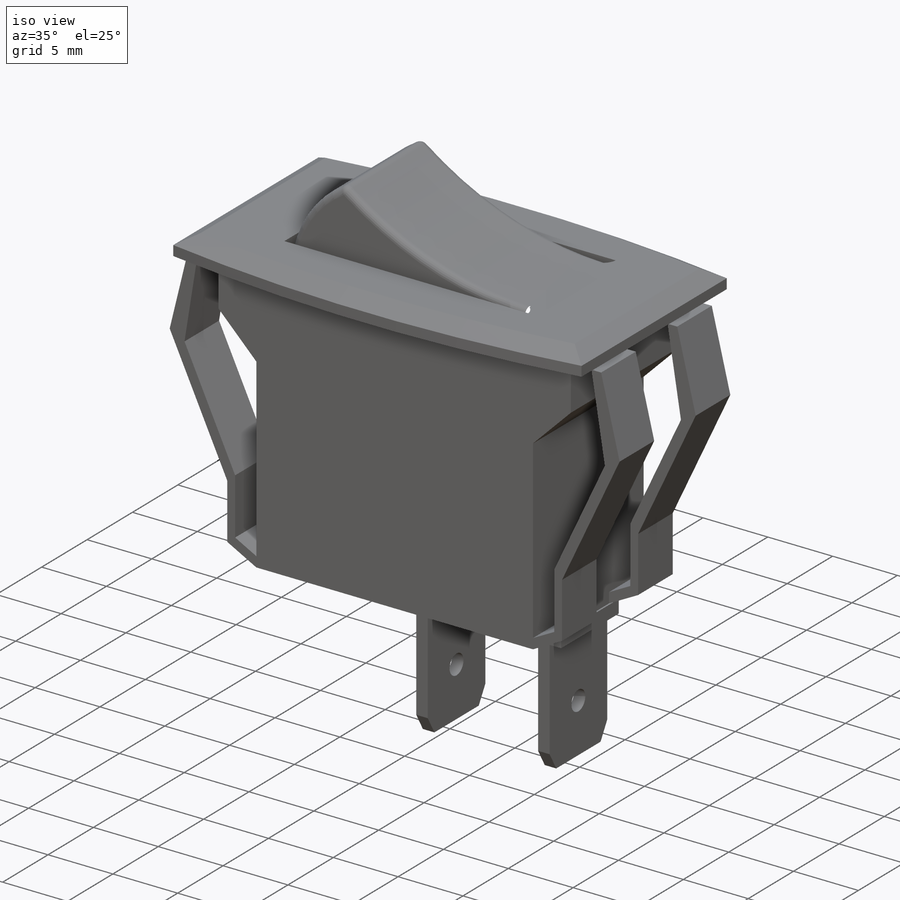
[diagram: iso view]
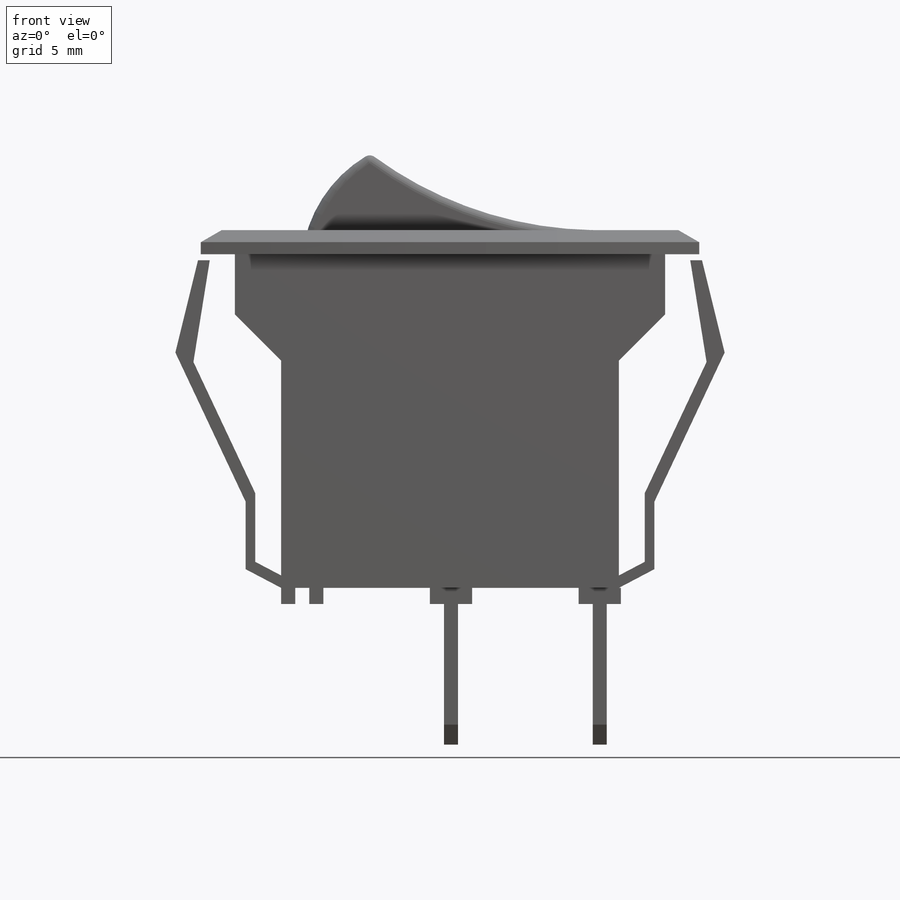
[diagram: front view]
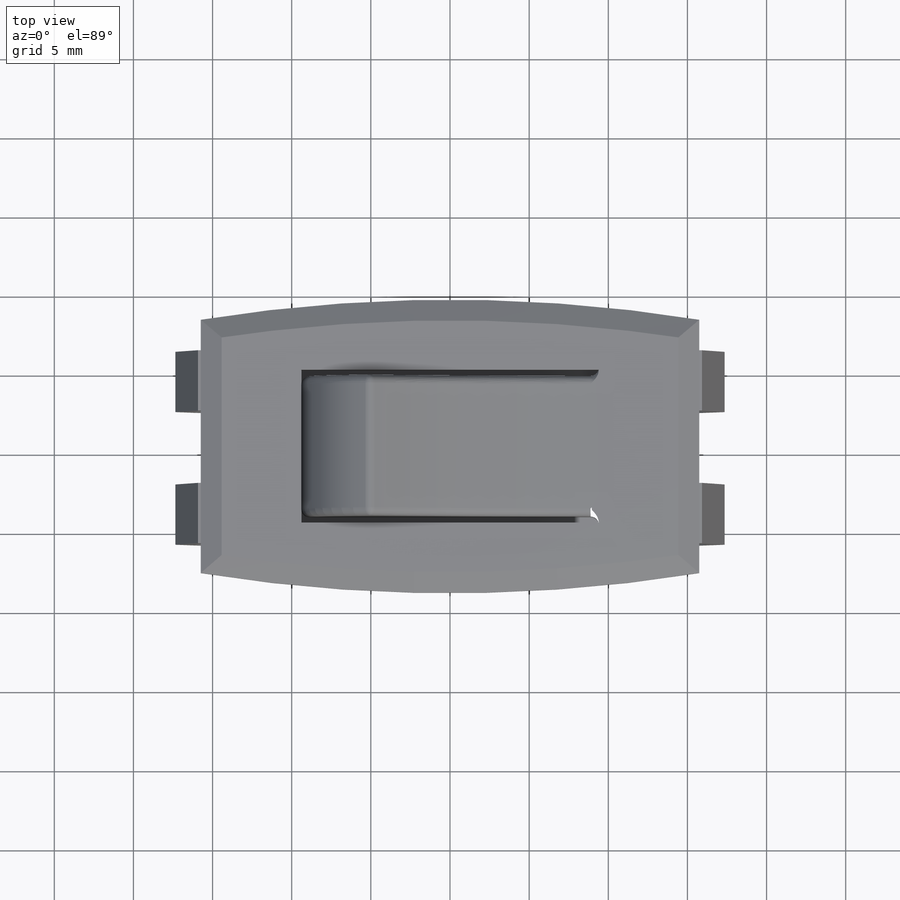
[diagram: top view]
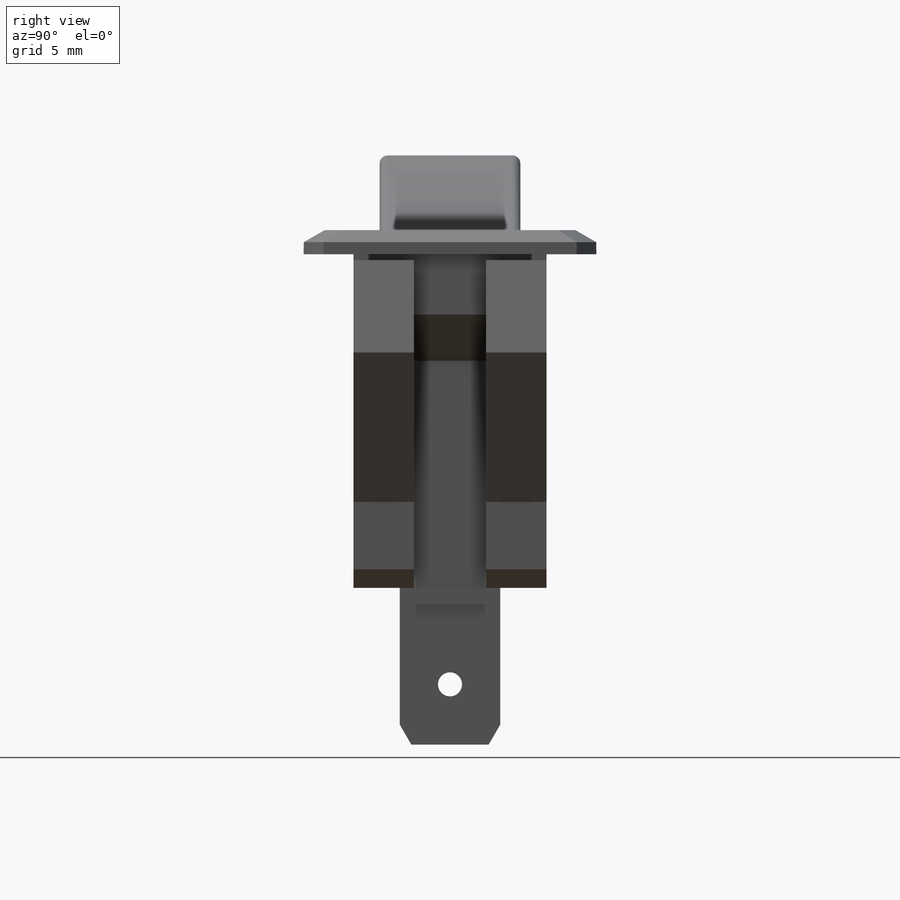
[diagram: right view]
SOLIDWORKS PART (.sldprt)
format: sldprt  version: not decoded by parser v0  size: 571,392 bytes
history: native  units: mm
features: sketch x22, extrude x10, cut_extrude x7, fillet x4, plane x3, chamfer x3, hole x2, material x1 (+11 scaffold rows collapsed)
feature tree (63):
  scaffold x11  (default folders/planes/origin — collapsed)
  material  "ABS"
  plane  "Plane1"  Offset=1.524mm
  sketch  "Sketch1"
  extrude  "Boss-Extrude1"  Depth=1.524mm
  sketch  "Sketch2"
  extrude  "Boss-Extrude2"  Depth=21.082mm
  sketch  "Sketch3"
  cut_extrude  "Cut-Extrude1"  Depth=12.192mm
  plane  "Plane2"
  sketch  "Sketch4"
  extrude  "Boss-Extrude3"  Depth=3.81mm
  plane  "Plane3"  Offset=6.096mm
  sketch  "Sketch5"
  extrude  "Boss-Extrude4"  Depth=3.81mm
  sketch  "Sketch6"
  extrude  "Boss-Extrude5"  Depth=9.906mm
  sketch  "Sketch7"
  cut_extrude  "Cut-Extrude2"  Depth=12.192mm
  sketch  "Sketch8"
  extrude  "Boss-Extrude6"  Depth=3.81mm
  sketch  "Sketch9"
  extrude  "Boss-Extrude7"  Depth=3.81mm
  sketch  "Sketch10"
  extrude  "Boss-Extrude8"  Depth=1.016mm
  sketch  "Sketch11"
  cut_extrude  "Cut-Extrude3"  Depth=6.35mm
  sketch  "Sketch12"
  cut_extrude  "Cut-Extrude4"  Depth=6.35mm
  sketch  "Sketch13"
  extrude  "Boss-Extrude9"  Depth=9.906mm
  sketch  "Sketch14"
  cut_extrude  "Cut-Extrude5"  Depth=6.35mm
  sketch  "Sketch15"
  cut_extrude  "Cut-Extrude6"  Depth=6.35mm
  sketch  "Sketch16"
  extrude  "Boss-Extrude10"  Depth=1.016mm
  sketch  "Sketch17"
  cut_extrude  "Cut-Extrude7"  Depth=2.54mm
  hole  "Hole1"  Diameter=1.524mm Depth=0.889mm
  sketch  "Sketch19"
  sketch  "Sketch18"  dims[Diameter=1.524mm Depth=0.889mm]
  hole  "Hole2"  Diameter=1.524mm Depth=27.25934mm
  sketch  "Sketch21"
  sketch  "Sketch20"  dims[Diameter=1.524mm Depth=~27.25934mm]
  sketch  "Sketch22"  dims[D1=8.89mm]
  chamfer  "Chamfer1"  Distance=1.319823mm Angle=30deg
  chamfer  "Chamfer2"  Distance=0.733235mm Angle=60deg
  chamfer  "Chamfer3"  Distance=1.180758mm Angle=62.22111deg
  fillet  "Fillet2"  Radius=0.508mm
  fillet  "Fillet3"  Radius=0.508mm
  fillet  "Fillet4"  Radius=0.508mm
  fillet  "Fillet6"  Radius=0.508mm
decode coverage: 29 of 48 modeling features carry decoded parameters
note: ~ marks probable driven/reference dimensions
note: suppression state not decoded; provenance and decode notes live in map.json
